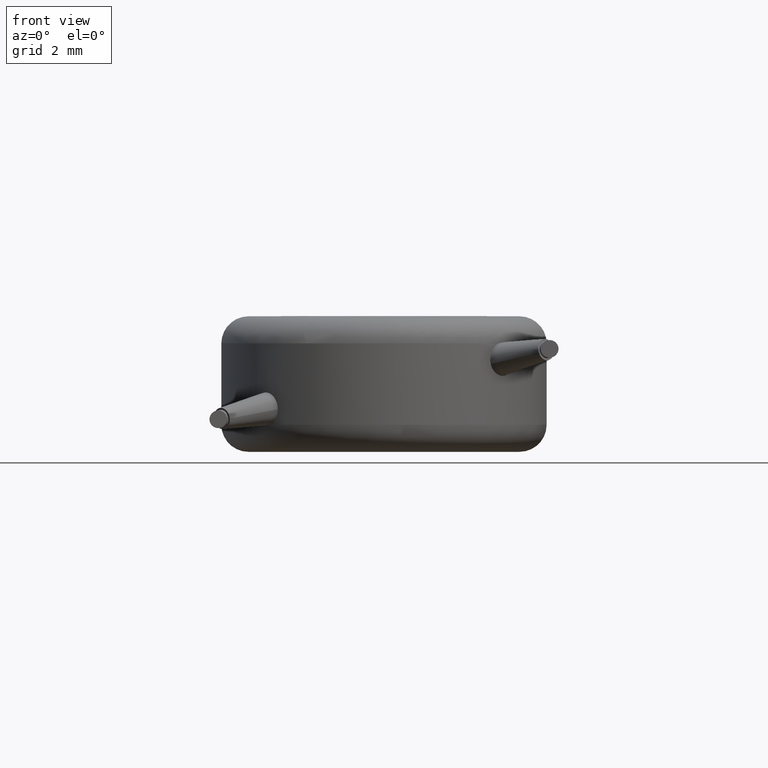
[diagram: clean part render]
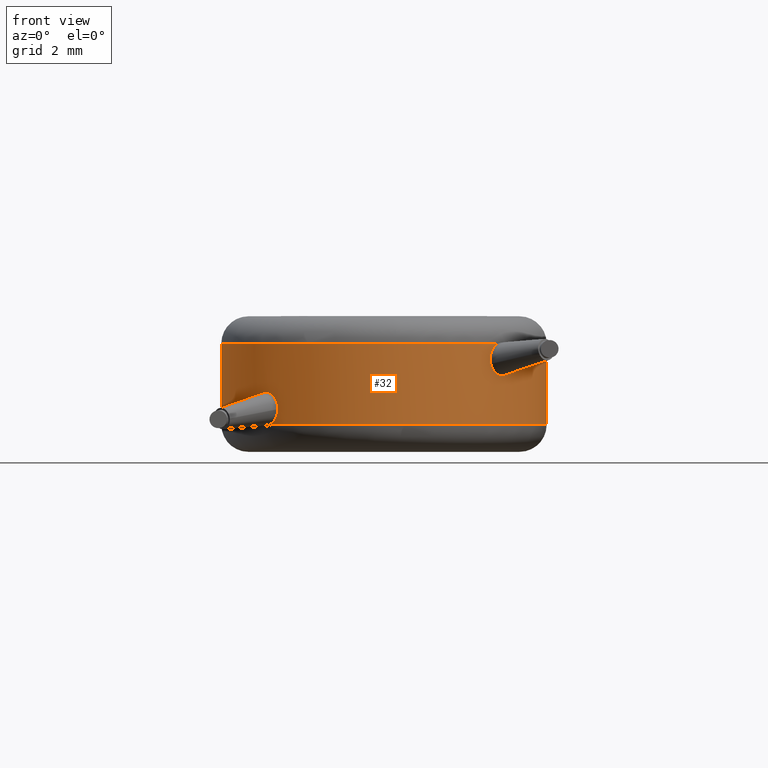
[diagram: same view with one face highlighted and labeled with its STEP entity id]
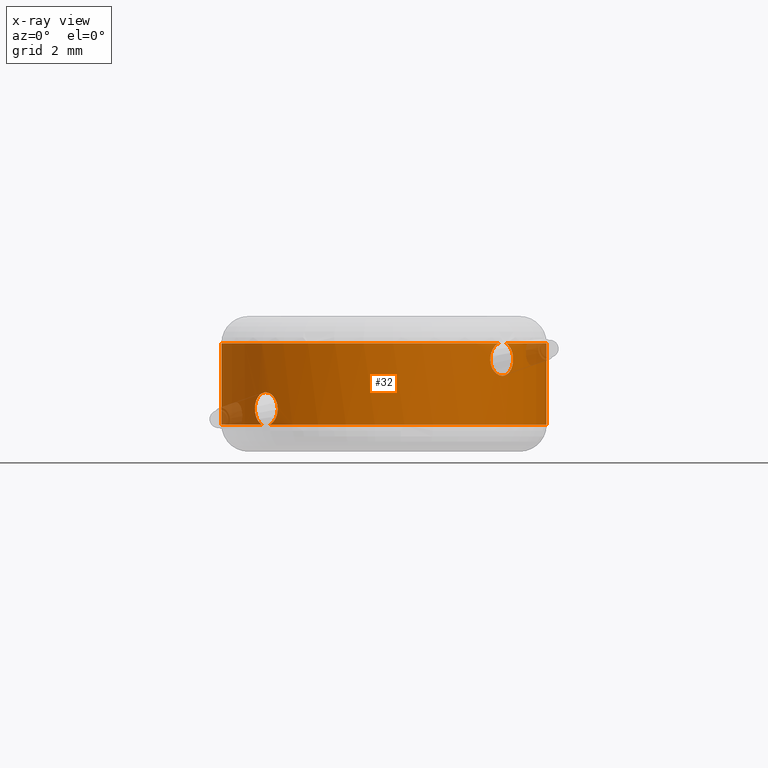
[diagram: x-ray of the same camera — body ghosted, the highlighted face saturated]
A machine part, front view. The second image highlights one B-rep face of the part: STEP entity #32.
The next image is the same camera in x-ray: the body ghosted, the highlighted face saturated — about 3% of this face is hidden behind the body in this view.
In plain terms, the highlighted cylindrical surface (partial cylindrical patch) has radius 6 mm, axis along (-0, -0, -1).
Its self-contained STEP definition (entity closure, byte-faithful):
#25 = CARTESIAN_POINT ( 'NONE',  ( 4.216137350026493800, -4.268979485276497100, 3.999999999990025300 ) ) ;
#32 = ADVANCED_FACE ( 'NONE', ( #624 ), #1287, .T. ) ;
#38 = DIRECTION ( 'NONE',  ( 1.000000000000000000, 0.0000000000000000000, 0.0000000000000000000 ) ) ;
#76 = CARTESIAN_POINT ( 'NONE',  ( 4.495631527395799400, -3.973574860234158700, 4.000000000000000000 ) ) ;
#91 = CARTESIAN_POINT ( 'NONE',  ( -4.761523775114033800, -3.650738464889796500, 1.583154931256750600 ) ) ;
#134 = DIRECTION ( 'NONE',  ( -0.0000000000000000000, -0.0000000000000000000, -1.000000000000000000 ) ) ;
#137 = EDGE_CURVE ( 'NONE', #416, #454, #146, .T. ) ;
#143 = ORIENTED_EDGE ( 'NONE', *, *, #1073, .F. ) ;
#146 = B_SPLINE_CURVE_WITH_KNOTS ( 'NONE', 3,
 ( #1755, #2629, #880, #2941, #3236, #25 ),
 .UNSPECIFIED., .F., .F.,
 ( 4, 2, 4 ),
 ( 0.002506061964511676200, 0.002970010291190377700, 0.003433958617869079200 ),
 .UNSPECIFIED. ) ;
#177 = ORIENTED_EDGE ( 'NONE', *, *, #137, .T. ) ;
#192 = CARTESIAN_POINT ( 'NONE',  ( 0.0000000000000000000, 0.0000000000000000000, 4.000000000000000000 ) ) ;
#204 = EDGE_CURVE ( 'NONE', #2230, #412, #1335, .T. ) ;
#217 = CARTESIAN_POINT ( 'NONE',  ( -4.134712148252082100, -4.349386552393892400, 2.127660817823514800 ) ) ;
#230 = ORIENTED_EDGE ( 'NONE', *, *, #204, .T. ) ;
#281 = CARTESIAN_POINT ( 'NONE',  ( -4.761523775114033800, -3.650738464889796500, 1.583154931256750600 ) ) ;
#412 = VERTEX_POINT ( 'NONE', #2224 ) ;
#414 = CARTESIAN_POINT ( 'NONE',  ( 3.974089180369415600, -4.495420622009543600, 3.086663383368933200 ) ) ;
#416 = VERTEX_POINT ( 'NONE', #2560 ) ;
#428 = CARTESIAN_POINT ( 'NONE',  ( 4.773430058162390700, -3.635512679893877500, 3.450318483404596600 ) ) ;
#445 = CARTESIAN_POINT ( 'NONE',  ( -4.495631527411706700, -3.973574860216163800, 1.000000000000000000 ) ) ;
#454 = VERTEX_POINT ( 'NONE', #2524 ) ;
#464 = DIRECTION ( 'NONE',  ( -0.0000000000000000000, -0.0000000000000000000, -1.000000000000000000 ) ) ;
#485 = CARTESIAN_POINT ( 'NONE',  ( -3.919113441514549700, -4.543187188806994600, 1.571959117164562600 ) ) ;
#516 = CARTESIAN_POINT ( 'NONE',  ( -3.917572670778714200, -4.544516311964412300, 1.733181770282316900 ) ) ;
#545 = EDGE_CURVE ( 'NONE', #3601, #2241, #3754, .T. ) ;
#602 = CIRCLE ( 'NONE', #795, 6.000000000000000900 ) ;
#624 = FACE_OUTER_BOUND ( 'NONE', #3131, .T. ) ;
#627 = ORIENTED_EDGE ( 'NONE', *, *, #3509, .T. ) ;
#655 = CARTESIAN_POINT ( 'NONE',  ( 6.000000000000000900, 7.347880794884120700E-016, 4.000000000000000000 ) ) ;
#676 = CARTESIAN_POINT ( 'NONE',  ( 4.384200166414865800, -4.099104085244090500, 2.782832288997371300 ) ) ;
#683 = ORIENTED_EDGE ( 'NONE', *, *, #2824, .T. ) ;
#703 = CARTESIAN_POINT ( 'NONE',  ( -6.000000000000000900, 0.0000000000000000000, 4.000000000000000000 ) ) ;
#709 = CARTESIAN_POINT ( 'NONE',  ( 0.0000000000000000000, 0.0000000000000000000, 1.000000000000000000 ) ) ;
#795 = AXIS2_PLACEMENT_3D ( 'NONE', #2989, #2395, #38 ) ;
#880 = CARTESIAN_POINT ( 'NONE',  ( 3.916228864028052900, -4.546196326311971300, 3.557577202761587700 ) ) ;
#943 = CARTESIAN_POINT ( 'NONE',  ( -6.000000000000000900, 0.0000000000000000000, 5.000000000000000000 ) ) ;
#979 = CARTESIAN_POINT ( 'NONE',  ( 4.263263347835845700, -4.224332428580671800, 2.799844493545596600 ) ) ;
#1024 = ORIENTED_EDGE ( 'NONE', *, *, #1303, .T. ) ;
#1073 = EDGE_CURVE ( 'NONE', #2241, #3141, #3260, .T. ) ;
#1107 = CARTESIAN_POINT ( 'NONE',  ( -4.471879461428114800, -4.003545165798009000, 2.198691831556094800 ) ) ;
#1250 = ORIENTED_EDGE ( 'NONE', *, *, #2744, .F. ) ;
#1267 = CARTESIAN_POINT ( 'NONE',  ( 4.057435819107638500, -4.422399056392482200, 2.952230401108166400 ) ) ;
#1287 = CYLINDRICAL_SURFACE ( 'NONE', #1334, 6.000000000000000900 ) ;
#1303 = EDGE_CURVE ( 'NONE', #2507, #3518, #2665, .T. ) ;
#1316 = CARTESIAN_POINT ( 'NONE',  ( -4.735164996477069900, -3.685611047713385400, 1.330319270067541700 ) ) ;
#1321 = CIRCLE ( 'NONE', #2528, 6.000000000000000900 ) ;
#1334 = AXIS2_PLACEMENT_3D ( 'NONE', #3727, #2605, #3205 ) ;
#1335 = LINE ( 'NONE', #943, #1821 ) ;
#1357 = EDGE_CURVE ( 'NONE', #3511, #416, #1909, .T. ) ;
#1421 = DIRECTION ( 'NONE',  ( 1.000000000000000000, 0.0000000000000000000, 0.0000000000000000000 ) ) ;
#1456 = CARTESIAN_POINT ( 'NONE',  ( -4.216137350047282500, -4.268979485255977500, 0.9999999999994455500 ) ) ;
#1487 = VECTOR ( 'NONE', #134, 1000.000000000000000 ) ;
#1491 = CARTESIAN_POINT ( 'NONE',  ( 4.616034693882038000, -3.837352871145487400, 3.935351436229421700 ) ) ;
#1501 = CARTESIAN_POINT ( 'NONE',  ( 4.742270901051193200, -3.675713087421716100, 3.603711967808966900 ) ) ;
#1603 = CARTESIAN_POINT ( 'NONE',  ( -4.642482069386025100, -3.801693908551539100, 1.123241806785645100 ) ) ;
#1648 = CARTESIAN_POINT ( 'NONE',  ( -3.919113441514549700, -4.543187188806994600, 1.571959117164562600 ) ) ;
#1658 = DIRECTION ( 'NONE',  ( 1.000000000000000000, 0.0000000000000000000, 0.0000000000000000000 ) ) ;
#1695 = CARTESIAN_POINT ( 'NONE',  ( -4.715162061955783000, -3.710551136993063300, 1.895323851387209900 ) ) ;
#1755 = CARTESIAN_POINT ( 'NONE',  ( 3.938775996722677000, -4.526151085375000900, 3.242597478241504600 ) ) ;
#1790 = VERTEX_POINT ( 'NONE', #1842 ) ;
#1821 = VECTOR ( 'NONE', #3569, 1000.000000000000000 ) ;
#1828 = EDGE_CURVE ( 'NONE', #412, #1790, #3467, .T. ) ;
#1836 = CARTESIAN_POINT ( 'NONE',  ( 4.742270901051193200, -3.675713087421716100, 3.603711967808966900 ) ) ;
#1842 = CARTESIAN_POINT ( 'NONE',  ( -4.495631527411706700, -3.973574860216163800, 1.000000000000000000 ) ) ;
#1909 = B_SPLINE_CURVE_WITH_KNOTS ( 'NONE', 3,
 ( #2739, #428, #3315, #2190, #3604, #676, #979, #1267, #414, #3590 ),
 .UNSPECIFIED., .F., .F.,
 ( 4, 2, 2, 2, 4 ),
 ( 0.0005711945172827389100, 0.001054911379089973300, 0.001538628240897207600, 0.002022345102704441800, 0.002506061964511676200 ),
 .UNSPECIFIED. ) ;
#1977 = DIRECTION ( 'NONE',  ( 0.0000000000000000000, 0.0000000000000000000, 1.000000000000000000 ) ) ;
#1988 = CARTESIAN_POINT ( 'NONE',  ( -4.761523775114033800, -3.650738464889796500, 1.583154931256750600 ) ) ;
#2024 = CARTESIAN_POINT ( 'NONE',  ( -3.920295566792488800, -4.542167445865790600, 1.448264289359390400 ) ) ;
#2190 = CARTESIAN_POINT ( 'NONE',  ( 4.674065744542414100, -3.762809884051865300, 2.986430548745901100 ) ) ;
#2208 = AXIS2_PLACEMENT_3D ( 'NONE', #709, #3031, #3048 ) ;
#2224 = CARTESIAN_POINT ( 'NONE',  ( -6.000000000000000900, 0.0000000000000000000, 1.000000000000000000 ) ) ;
#2230 = VERTEX_POINT ( 'NONE', #703 ) ;
#2241 = VERTEX_POINT ( 'NONE', #1648 ) ;
#2268 = CARTESIAN_POINT ( 'NONE',  ( 0.0000000000000000000, 0.0000000000000000000, 1.000000000000000000 ) ) ;
#2384 = EDGE_CURVE ( 'NONE', #3518, #3511, #3028, .T. ) ;
#2395 = DIRECTION ( 'NONE',  ( -0.0000000000000000000, -0.0000000000000000000, -1.000000000000000000 ) ) ;
#2507 = VERTEX_POINT ( 'NONE', #655 ) ;
#2509 = CARTESIAN_POINT ( 'NONE',  ( 6.000000000000000900, 7.347880794884120700E-016, 1.000000000000000000 ) ) ;
#2524 = CARTESIAN_POINT ( 'NONE',  ( 4.216137350026493800, -4.268979485276497100, 3.999999999990025300 ) ) ;
#2528 = AXIS2_PLACEMENT_3D ( 'NONE', #2268, #1977, #1421 ) ;
#2556 = CARTESIAN_POINT ( 'NONE',  ( -4.250046847073583900, -4.238299377085943400, 2.195093563552882500 ) ) ;
#2560 = CARTESIAN_POINT ( 'NONE',  ( 3.938775996722677000, -4.526151085375000900, 3.242597478241504600 ) ) ;
#2605 = DIRECTION ( 'NONE',  ( -0.0000000000000000000, -0.0000000000000000000, -1.000000000000000000 ) ) ;
#2629 = CARTESIAN_POINT ( 'NONE',  ( 3.904905991857858400, -4.555625656518128800, 3.392158860323563300 ) ) ;
#2665 = CIRCLE ( 'NONE', #3200, 6.000000000000000900 ) ;
#2739 = CARTESIAN_POINT ( 'NONE',  ( 4.742270901051193200, -3.675713087421716100, 3.603711967808966900 ) ) ;
#2744 = EDGE_CURVE ( 'NONE', #2507, #3204, #3107, .T. ) ;
#2824 = EDGE_CURVE ( 'NONE', #3601, #3204, #1321, .T. ) ;
#2841 = CARTESIAN_POINT ( 'NONE',  ( -4.577835784070774800, -3.880282038320888900, 2.133860007861350500 ) ) ;
#2924 = B_SPLINE_CURVE_WITH_KNOTS ( 'NONE', 3,
 ( #281, #3081, #1316, #1603, #3359, #445 ),
 .UNSPECIFIED., .F., .F.,
 ( 4, 2, 4 ),
 ( 0.002675699420584500500, 0.003055249945089865200, 0.003434800469595229900 ),
 .UNSPECIFIED. ) ;
#2941 = CARTESIAN_POINT ( 'NONE',  ( 4.019618608254893000, -4.455043860276786600, 3.835062356374692200 ) ) ;
#2956 = CARTESIAN_POINT ( 'NONE',  ( -4.216137350047282500, -4.268979485255977500, 0.9999999999994455500 ) ) ;
#2989 = CARTESIAN_POINT ( 'NONE',  ( 0.0000000000000000000, 0.0000000000000000000, 4.000000000000000000 ) ) ;
#3012 = CARTESIAN_POINT ( 'NONE',  ( 4.495631527395799400, -3.973574860234158700, 4.000000000000000000 ) ) ;
#3028 = B_SPLINE_CURVE_WITH_KNOTS ( 'NONE', 3,
 ( #76, #1491, #3549, #1501 ),
 .UNSPECIFIED., .F., .F.,
 ( 4, 4 ),
 ( 5.891716762051443600E-007, 0.0005711945172827389100 ),
 .UNSPECIFIED. ) ;
#3031 = DIRECTION ( 'NONE',  ( 0.0000000000000000000, 0.0000000000000000000, 1.000000000000000000 ) ) ;
#3048 = DIRECTION ( 'NONE',  ( 1.000000000000000000, 0.0000000000000000000, 0.0000000000000000000 ) ) ;
#3081 = CARTESIAN_POINT ( 'NONE',  ( -4.760514657364514500, -3.652054620018788900, 1.454875372992863600 ) ) ;
#3107 = LINE ( 'NONE', #3490, #1487 ) ;
#3118 = ORIENTED_EDGE ( 'NONE', *, *, #545, .F. ) ;
#3131 = EDGE_LOOP ( 'NONE', ( #1250, #1024, #3650, #3551, #177, #627, #230, #3653, #3164, #143, #3118, #683 ) ) ;
#3141 = VERTEX_POINT ( 'NONE', #91 ) ;
#3164 = ORIENTED_EDGE ( 'NONE', *, *, #3761, .F. ) ;
#3200 = AXIS2_PLACEMENT_3D ( 'NONE', #192, #464, #1658 ) ;
#3204 = VERTEX_POINT ( 'NONE', #2509 ) ;
#3205 = DIRECTION ( 'NONE',  ( -1.000000000000000000, 0.0000000000000000000, 0.0000000000000000000 ) ) ;
#3236 = CARTESIAN_POINT ( 'NONE',  ( 4.111053898128632000, -4.372762196799083500, 3.946930888523606700 ) ) ;
#3260 = B_SPLINE_CURVE_WITH_KNOTS ( 'NONE', 3,
 ( #485, #516, #3429, #217, #2556, #1107, #2841, #3443, #1695, #3456, #3719, #1988 ),
 .UNSPECIFIED., .F., .F.,
 ( 4, 2, 2, 2, 2, 4 ),
 ( 0.0007422744442553735000, 0.001225630688337655000, 0.001708986932419936400, 0.002192343176502218000, 0.002434021298543359100, 0.002675699420584500500 ),
 .UNSPECIFIED. ) ;
#3315 = CARTESIAN_POINT ( 'NONE',  ( 4.766691709584253400, -3.644760479593141900, 3.276887801983951100 ) ) ;
#3359 = CARTESIAN_POINT ( 'NONE',  ( -4.575692573067717800, -3.882995225094172400, 1.042987504135418600 ) ) ;
#3429 = CARTESIAN_POINT ( 'NONE',  ( -3.966432412034310000, -4.503378937177272300, 1.894757841638564400 ) ) ;
#3443 = CARTESIAN_POINT ( 'NONE',  ( -4.686606422173246900, -3.746867029179617300, 1.963998386896042200 ) ) ;
#3456 = CARTESIAN_POINT ( 'NONE',  ( -4.752895843811231200, -3.662092859094313800, 1.745417958565961500 ) ) ;
#3467 = CIRCLE ( 'NONE', #2208, 6.000000000000000900 ) ;
#3481 = CARTESIAN_POINT ( 'NONE',  ( -4.057321638387616500, -4.420777202152892800, 1.120974351812912500 ) ) ;
#3490 = CARTESIAN_POINT ( 'NONE',  ( 6.000000000000000900, 7.347880794884120700E-016, 5.000000000000000000 ) ) ;
#3491 = CARTESIAN_POINT ( 'NONE',  ( -3.950636437515841600, -4.516370410736396200, 1.324412007265173300 ) ) ;
#3504 = CARTESIAN_POINT ( 'NONE',  ( -4.132172765522085500, -4.351904742245498200, 1.042403687870558700 ) ) ;
#3509 = EDGE_CURVE ( 'NONE', #454, #2230, #602, .T. ) ;
#3511 = VERTEX_POINT ( 'NONE', #1836 ) ;
#3518 = VERTEX_POINT ( 'NONE', #3012 ) ;
#3549 = CARTESIAN_POINT ( 'NONE',  ( 4.705514726073482200, -3.723134563169423000, 3.784659024017279700 ) ) ;
#3551 = ORIENTED_EDGE ( 'NONE', *, *, #1357, .T. ) ;
#3569 = DIRECTION ( 'NONE',  ( -0.0000000000000000000, -0.0000000000000000000, -1.000000000000000000 ) ) ;
#3590 = CARTESIAN_POINT ( 'NONE',  ( 3.938775996722677000, -4.526151085375000900, 3.242597478241504600 ) ) ;
#3601 = VERTEX_POINT ( 'NONE', #2956 ) ;
#3604 = CARTESIAN_POINT ( 'NONE',  ( 4.589333778145253000, -3.868059057671166600, 2.876349302997895500 ) ) ;
#3650 = ORIENTED_EDGE ( 'NONE', *, *, #2384, .T. ) ;
#3653 = ORIENTED_EDGE ( 'NONE', *, *, #1828, .T. ) ;
#3719 = CARTESIAN_POINT ( 'NONE',  ( -4.762166329047716800, -3.649900405449907100, 1.664836712036480600 ) ) ;
#3723 = CARTESIAN_POINT ( 'NONE',  ( -3.919113441514549700, -4.543187188806994600, 1.571959117164562600 ) ) ;
#3727 = CARTESIAN_POINT ( 'NONE',  ( 0.0000000000000000000, 0.0000000000000000000, 5.000000000000000000 ) ) ;
#3754 = B_SPLINE_CURVE_WITH_KNOTS ( 'NONE', 3,
 ( #1456, #3504, #3481, #3491, #2024, #3723 ),
 .UNSPECIFIED., .F., .F.,
 ( 4, 2, 4 ),
 ( 5.837919219496091100E-007, 0.0003714291180886615100, 0.0007422744442553735000 ),
 .UNSPECIFIED. ) ;
#3761 = EDGE_CURVE ( 'NONE', #3141, #1790, #2924, .T. ) ;